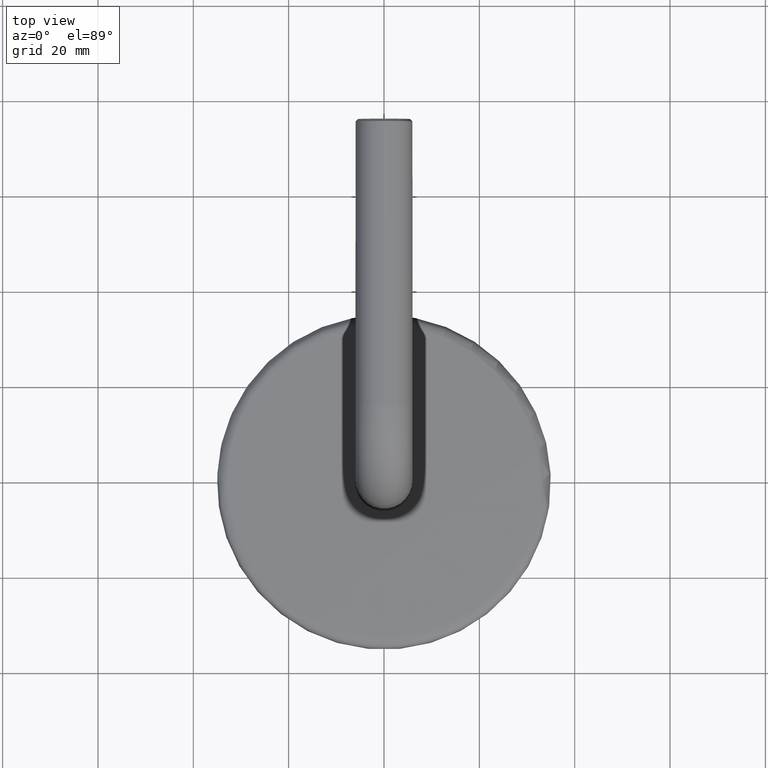
[diagram: clean part render]
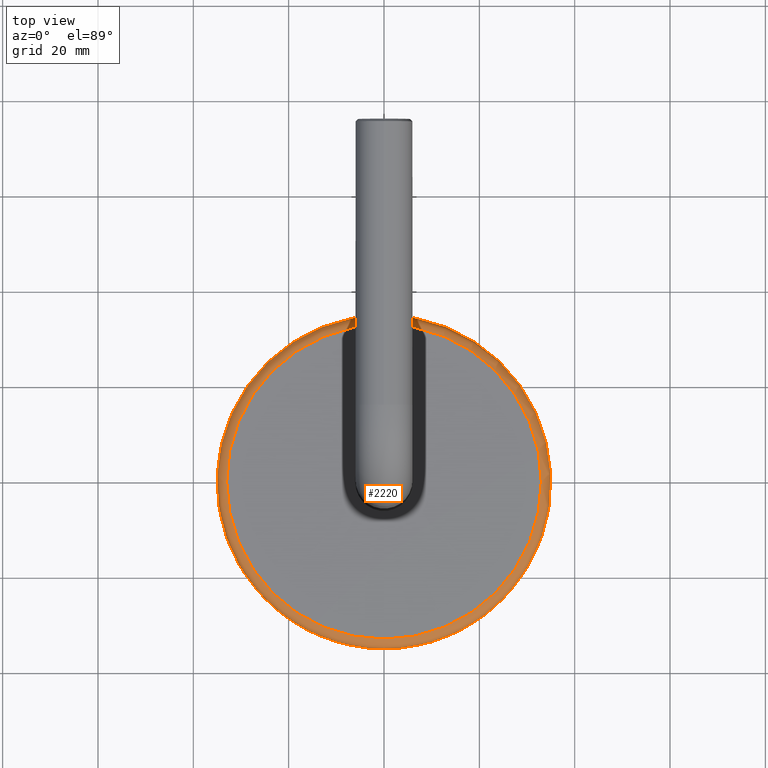
[diagram: same view with one face highlighted and labeled with its STEP entity id]
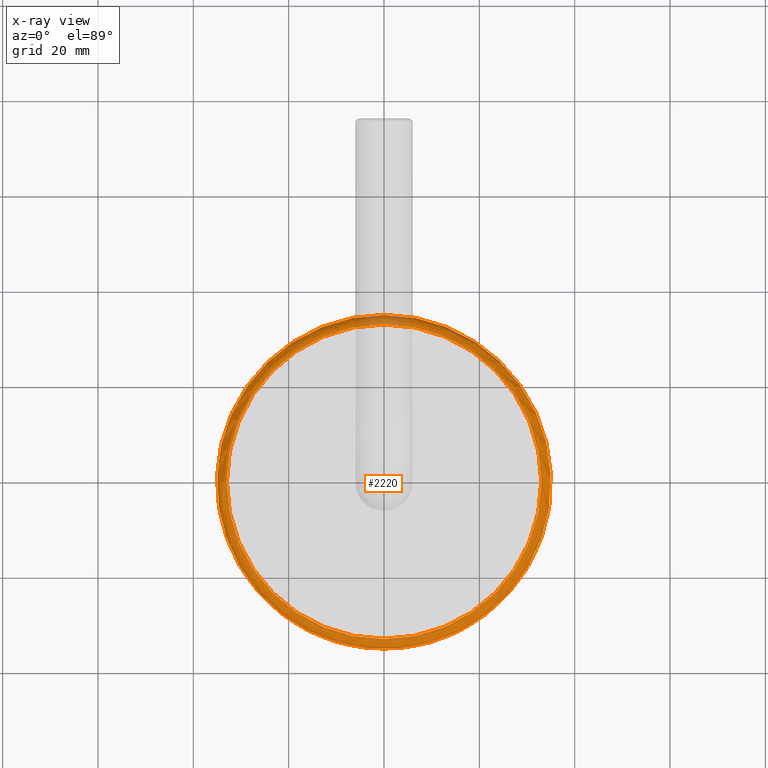
[diagram: x-ray of the same camera — body ghosted, the highlighted face saturated]
A machine part, top view. The second image highlights one B-rep face of the part: STEP entity #2220.
The next image is the same camera in x-ray: the body ghosted, the highlighted face saturated — about 5% of this face is hidden behind the body in this view.
In plain terms, the highlighted toroidal blend (fillet) surface has major radius 33 mm and minor (blend) radius 2 mm.
Its self-contained STEP definition (entity closure, byte-faithful):
#58 = CIRCLE ( 'NONE', #8347, 33.00000000000000000 ) ;
#605 = DIRECTION ( 'NONE',  ( -0.0000000000000000000, 1.224646799147353500E-016, -1.000000000000000000 ) ) ;
#746 = FACE_OUTER_BOUND ( 'NONE', #6645, .T. ) ;
#770 = DIRECTION ( 'NONE',  ( 0.0000000000000000000, 1.000000000000000000, 1.051347561198065000E-016 ) ) ;
#2220 = ADVANCED_FACE ( 'NONE', ( #746, #10583 ), #7693, .T. ) ;
#2692 = CARTESIAN_POINT ( 'NONE',  ( 0.0000000000000000000, 35.00000000000000000, 10.00000000000000700 ) ) ;
#2747 = CARTESIAN_POINT ( 'NONE',  ( 0.0000000000000000000, 33.00000000000000000, 12.00000000000000900 ) ) ;
#4359 = CARTESIAN_POINT ( 'NONE',  ( 0.0000000000000000000, 0.0000000000000000000, 10.00000000000000400 ) ) ;
#4528 = DIRECTION ( 'NONE',  ( -0.0000000000000000000, 1.224646799147353500E-016, -1.000000000000000000 ) ) ;
#4558 = VERTEX_POINT ( 'NONE', #2692 ) ;
#5521 = EDGE_CURVE ( 'NONE', #4558, #4558, #6706, .T. ) ;
#5989 = CARTESIAN_POINT ( 'NONE',  ( 0.0000000000000000000, -1.224646799147354000E-015, 10.00000000000000400 ) ) ;
#6645 = EDGE_LOOP ( 'NONE', ( #14635 ) ) ;
#6706 = CIRCLE ( 'NONE', #9691, 35.00000000000000000 ) ;
#7693 = TOROIDAL_SURFACE ( 'NONE', #8291, 33.00000000000000000, 2.000000000000001800 ) ;
#8160 = DIRECTION ( 'NONE',  ( 0.0000000000000000000, 1.000000000000000000, 9.912705577010326800E-017 ) ) ;
#8205 = DIRECTION ( 'NONE',  ( -0.0000000000000000000, 1.224646799147353500E-016, -1.000000000000000000 ) ) ;
#8291 = AXIS2_PLACEMENT_3D ( 'NONE', #4359, #605, #10577 ) ;
#8347 = AXIS2_PLACEMENT_3D ( 'NONE', #13096, #8205, #770 ) ;
#8390 = VERTEX_POINT ( 'NONE', #2747 ) ;
#9691 = AXIS2_PLACEMENT_3D ( 'NONE', #5989, #4528, #8160 ) ;
#9780 = ORIENTED_EDGE ( 'NONE', *, *, #10907, .T. ) ;
#10577 = DIRECTION ( 'NONE',  ( 0.0000000000000000000, 1.000000000000000000, 1.224646799147353500E-016 ) ) ;
#10583 = FACE_OUTER_BOUND ( 'NONE', #12284, .T. ) ;
#10907 = EDGE_CURVE ( 'NONE', #8390, #8390, #58, .T. ) ;
#12284 = EDGE_LOOP ( 'NONE', ( #9780 ) ) ;
#13096 = CARTESIAN_POINT ( 'NONE',  ( 0.0000000000000000000, -1.469576158976824700E-015, 12.00000000000000500 ) ) ;
#14635 = ORIENTED_EDGE ( 'NONE', *, *, #5521, .F. ) ;